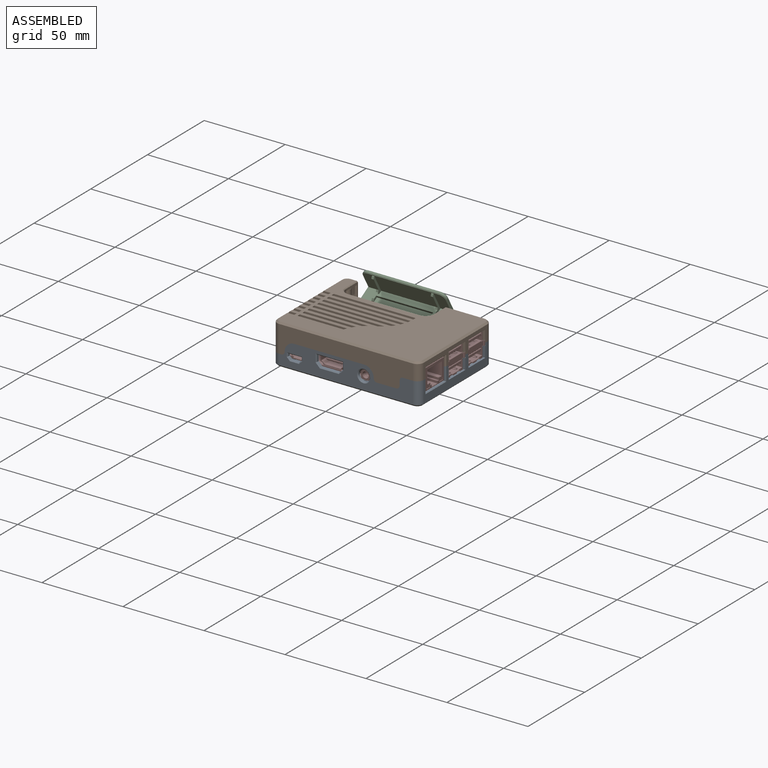
[diagram: assembled view]
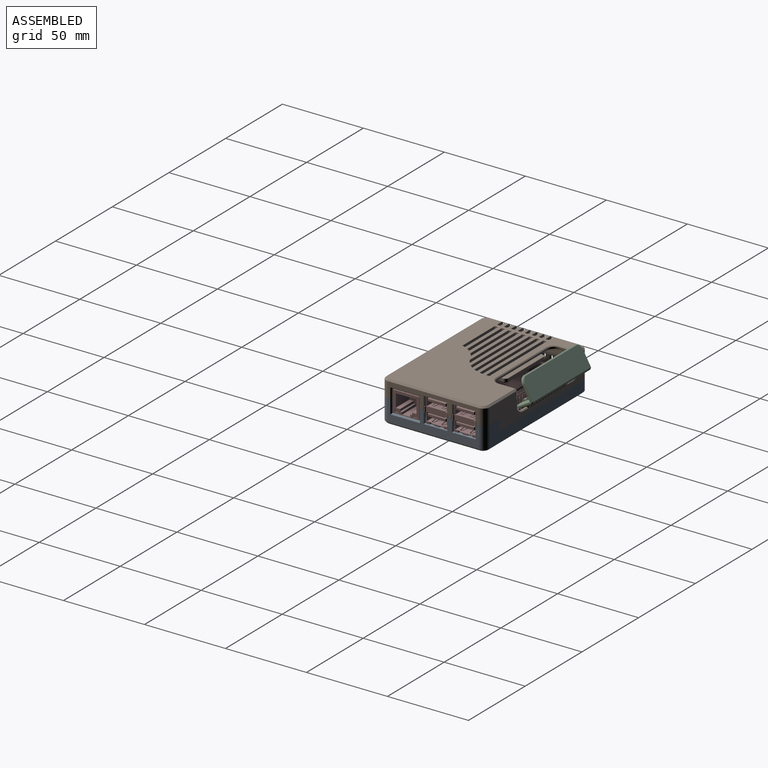
[diagram: assembled view, second angle]
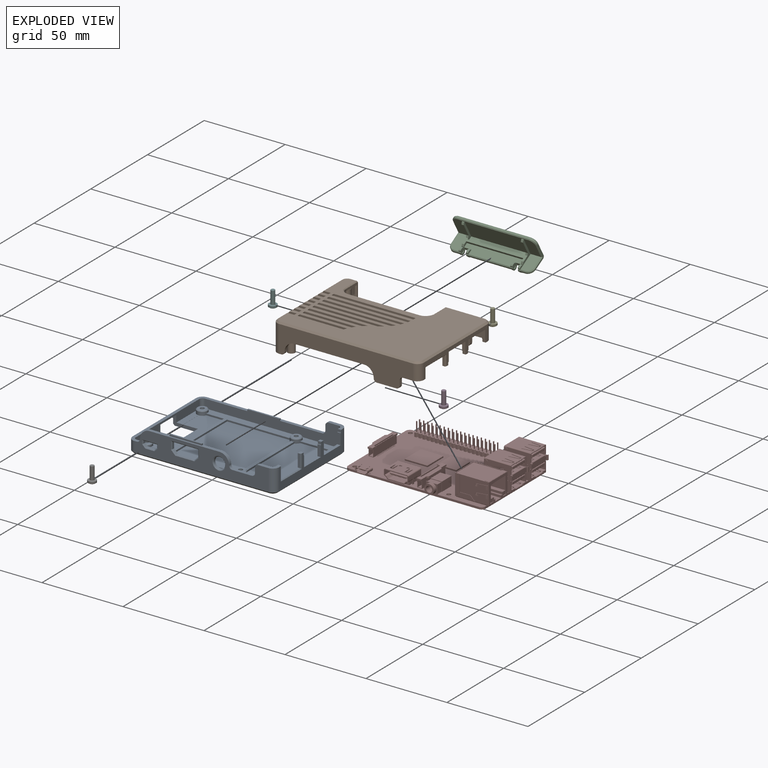
[diagram: exploded view]
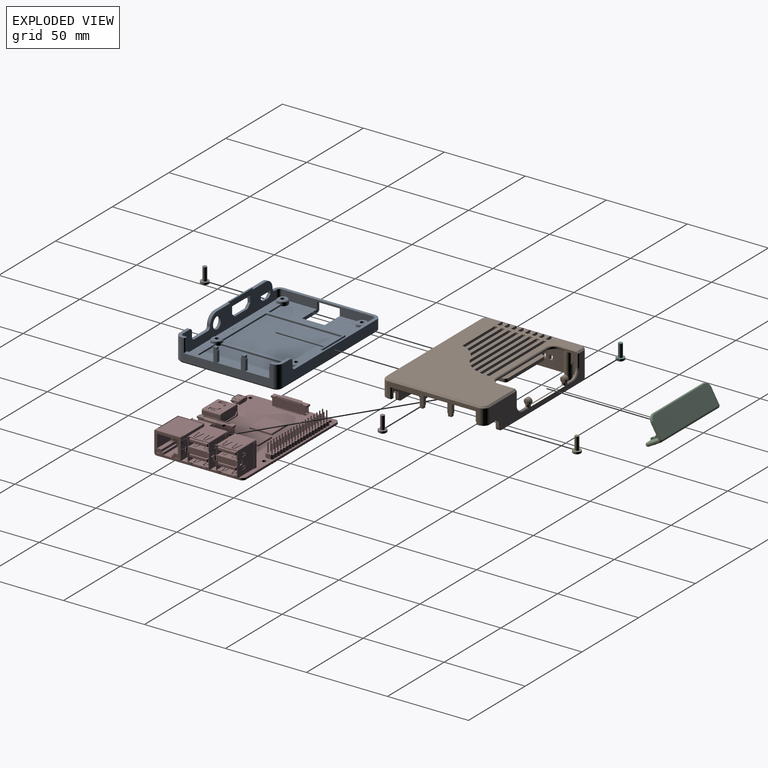
[diagram: exploded view, second angle]
FCSTD DOCUMENT  (FreeCAD 2021.519R24301 +3652 (Git))
Label: RasberryPi2_Assembly
License: All rights reserved
LicenseURL: http://en.wikipedia.org/wiki/All_rights_reserved
objects: App::FeaturePython×28, Part::FeaturePython×19, App::Link×8
note: 18 computed .brp shape members not serialized (recipe doc carries the construction recipe); baked Part::Feature solids carry a one-line shape summary decoded from their .brp
EXTERNAL_REF file=RasberryPi2.FCStd obj=Body016
EXTERNAL_REF file=RasberryPi2.FCStd obj=Body017
EXTERNAL_REF file=RasberryPi2.FCStd obj=Body018
EXTERNAL_REF file=RasberryPi2.FCStd obj=Screw
EXTERNAL_REF file=RasberryPi2.FCStd obj=Screw001
EXTERNAL_REF file=RasberryPi2.FCStd obj=Screw002
EXTERNAL_REF file=RasberryPi2.FCStd obj=Screw003
EXTERNAL_REF file=RasberryPi2.FCStd obj=Part001

FEATURE [App::Link] Link  label="Link(Bottom)"
  AutoLinkLabel = true
  LinkedObject = -> <external RasberryPi2.FCStd>#Body016
  SyncGroupVisibility = false
  _LinkVersion = 1
FEATURE [App::Link] Link001  label="Link001(Top)"
  AutoLinkLabel = true
  LinkPlacement = pos=(3.6e-15,3.6e-15,4.4e-15) rot=(0,0,1;0rad)
  LinkedObject = -> <external RasberryPi2.FCStd>#Body017
  Placement = pos=(3.6e-15,3.6e-15,4.4e-15) rot=(0,0,1;0rad)
  SyncGroupVisibility = false
  _LinkVersion = 1
FEATURE [App::Link] Link002  label="Link002(SideDoor)"
  AutoLinkLabel = true
  LinkPlacement = pos=(-2.4768e-12,3.6077,33.7128) rot=(-1,0,0;1.0472rad)
  LinkedObject = -> <external RasberryPi2.FCStd>#Body018
  Placement = pos=(-2.4768e-12,3.6077,33.7128) rot=(-1,0,0;1.0472rad)
  SyncGroupVisibility = false
  _LinkVersion = 1
FEATURE [App::Link] Link003  label="Link003(M2.5x8-Screw)"
  AutoLinkLabel = true
  LinkPlacement = pos=(19,-24.5,1.9) rot=(1,0,0;3.14159rad)
  LinkedObject = -> <external RasberryPi2.FCStd>#Screw
  Placement = pos=(19,-24.5,1.9) rot=(1,0,0;3.14159rad)
  SyncGroupVisibility = false
  _LinkVersion = 1
FEATURE [App::Link] Link004  label="Link004(M2.5x8-Screw031)"
  AutoLinkLabel = true
  LinkPlacement = pos=(19,24.5,1.9) rot=(1,0,0;3.14159rad)
  LinkedObject = -> <external RasberryPi2.FCStd>#Screw001
  Placement = pos=(19,24.5,1.9) rot=(1,0,0;3.14159rad)
  SyncGroupVisibility = false
  _LinkVersion = 1
FEATURE [App::Link] Link005  label="Link005(M2.5x8-Screw032)"
  AutoLinkLabel = true
  LinkPlacement = pos=(-39,24.5,1.9) rot=(1,0,0;3.14159rad)
  LinkedObject = -> <external RasberryPi2.FCStd>#Screw002
  Placement = pos=(-39,24.5,1.9) rot=(1,0,0;3.14159rad)
  SyncGroupVisibility = false
  _LinkVersion = 1
FEATURE [App::Link] Link006  label="Link006(M2.5x8-Screw033)"
  AutoLinkLabel = true
  LinkPlacement = pos=(-39,-24.5,1.9) rot=(1,0,0;3.14159rad)
  LinkedObject = -> <external RasberryPi2.FCStd>#Screw003
  Placement = pos=(-39,-24.5,1.9) rot=(1,0,0;3.14159rad)
  SyncGroupVisibility = false
  _LinkVersion = 1
FEATURE [App::Link] Link007  label="Link007(RasberryPi2)"
  AutoLinkLabel = true
  LinkPlacement = pos=(0,7.1e-15,6) rot=(0,0,1;0rad)
  LinkedObject = -> <external RasberryPi2.FCStd>#Part001
  Placement = pos=(0,7.1e-15,6) rot=(0,0,1;0rad)
  SyncGroupVisibility = false
  _LinkVersion = 1
FEATURE [Part::FeaturePython] Parts  # WARN: FeaturePython — macro-defined, semantics opaque (R4)
  Group = -> [Link,Link001,Link002,Link003,Link004,Link005,Link006,Link007]
  GroupMode = 0
  _LinkVersion = 1
FEATURE [Part::FeaturePython] Assembly  label="Pi2_Assembly"  # WARN: FeaturePython — macro-defined, semantics opaque (R4)
  AutoRelax = true
  BuildShape = 0
  Freeze = false
  Group = -> [Constraints,Elements,Parts]
  Verbose = false
  _LinkVersion = 1
  _SolverType = 1
  _Version = 1
FEATURE [App::FeaturePython] Constraints  # WARN: FeaturePython — macro-defined, semantics opaque (R4)
  Group = -> [Constraint,Constraint001,Constraint002,Constraint003,Constraint004,Constraint005,Constraint006,Constraint007,Constraint008]
  _LinkVersion = 1
  _Version = 1
FEATURE [App::FeaturePython] Elements  # WARN: FeaturePython — macro-defined, semantics opaque (R4)
  Group = -> [_Element,_Element001,_Element002,_Element003,_Element004,_Element005,_Element006,_Element007,_Element008,_Element009,_Element010,_Element011,_Element012,_Element013,_Element014,_Element015,_Element016]
  _LinkVersion = 1
FEATURE [App::FeaturePython] Constraint  label="Locked"  # WARN: FeaturePython — macro-defined, semantics opaque (R4)
  Disabled = false
  Group = -> [ElementLink]
  _ConstraintType = 0
  _LinkVersion = 1
  _Parent = -> Constraints
FEATURE [App::FeaturePython] ElementLink  label="_Element"  # link proxy (typed FeaturePython)
  LinkTransform = true
  LinkedObject = -> _Element
  _LinkVersion = 1
  _Parent = -> Constraint
FEATURE [Part::FeaturePython] _Element  # link proxy (typed FeaturePython)
  Detach = false
  LinkTransform = true
  LinkedObject = -> Link [Pad060.Face99]
  _LinkVersion = 1
  _Parent = -> Elements
FEATURE [App::FeaturePython] Constraint001  label="Attachment"  # WARN: FeaturePython — macro-defined, semantics opaque (R4)
  Cascade = false
  Disabled = false
  Group = -> [ElementLink001,ElementLink002]
  Multiply = false
  _ConstraintType = 45
  _LinkVersion = 1
  _Parent = -> Constraints
FEATURE [App::FeaturePython] ElementLink001  label="_Element001"  # link proxy (typed FeaturePython)
  LinkTransform = true
  LinkedObject = -> _Element001
  _LinkVersion = 1
  _Parent = -> Constraint001
FEATURE [Part::FeaturePython] _Element001  # link proxy (typed FeaturePython)
  Detach = false
  LinkTransform = true
  LinkedObject = -> Link [Pad060.Edge408]
  _LinkVersion = 1
  _Parent = -> Elements
FEATURE [App::FeaturePython] ElementLink002  label="_Element002"  # link proxy (typed FeaturePython)
  LinkTransform = true
  LinkedObject = -> _Element002
  _LinkVersion = 1
  _Parent = -> Constraint001
FEATURE [Part::FeaturePython] _Element002  # link proxy (typed FeaturePython)
  Detach = false
  LinkTransform = true
  LinkedObject = -> Link003 [Edge5]
  _LinkVersion = 1
  _Parent = -> Elements
FEATURE [App::FeaturePython] Constraint002  label="Attachment001"  # WARN: FeaturePython — macro-defined, semantics opaque (R4)
  Cascade = false
  Disabled = false
  Group = -> [ElementLink003,ElementLink004]
  Multiply = false
  _ConstraintType = 45
  _LinkVersion = 1
  _Parent = -> Constraints
FEATURE [App::FeaturePython] ElementLink003  label="_Element003"  # link proxy (typed FeaturePython)
  LinkTransform = true
  LinkedObject = -> _Element003
  _LinkVersion = 1
  _Parent = -> Constraint002
FEATURE [Part::FeaturePython] _Element003  # link proxy (typed FeaturePython)
  Detach = false
  LinkTransform = true
  LinkedObject = -> Link [Pad060.Edge180]
  _LinkVersion = 1
  _Parent = -> Elements
FEATURE [App::FeaturePython] ElementLink004  label="_Element004"  # link proxy (typed FeaturePython)
  LinkTransform = true
  LinkedObject = -> _Element004
  _LinkVersion = 1
  _Parent = -> Constraint002
FEATURE [Part::FeaturePython] _Element004  # link proxy (typed FeaturePython)
  Detach = false
  LinkTransform = true
  LinkedObject = -> Link004 [Edge5]
  _LinkVersion = 1
  _Parent = -> Elements
FEATURE [App::FeaturePython] Constraint003  label="Attachment002"  # WARN: FeaturePython — macro-defined, semantics opaque (R4)
  Cascade = false
  Disabled = false
  Group = -> [ElementLink005,ElementLink006]
  Multiply = false
  _ConstraintType = 45
  _LinkVersion = 1
  _Parent = -> Constraints
FEATURE [App::FeaturePython] ElementLink005  label="_Element005"  # link proxy (typed FeaturePython)
  LinkTransform = true
  LinkedObject = -> _Element005
  _LinkVersion = 1
  _Parent = -> Constraint003
FEATURE [Part::FeaturePython] _Element005  # link proxy (typed FeaturePython)
  Detach = false
  LinkTransform = true
  LinkedObject = -> Link [Pad060.Edge410]
  _LinkVersion = 1
  _Parent = -> Elements
FEATURE [App::FeaturePython] ElementLink006  label="_Element006"  # link proxy (typed FeaturePython)
  LinkTransform = true
  LinkedObject = -> _Element006
  _LinkVersion = 1
  _Parent = -> Constraint003
FEATURE [Part::FeaturePython] _Element006  # link proxy (typed FeaturePython)
  Detach = false
  LinkTransform = true
  LinkedObject = -> Link005 [Edge5]
  _LinkVersion = 1
  _Parent = -> Elements
FEATURE [App::FeaturePython] Constraint004  label="Attachment003"  # WARN: FeaturePython — macro-defined, semantics opaque (R4)
  Cascade = false
  Disabled = false
  Group = -> [ElementLink007,ElementLink008]
  Multiply = false
  _ConstraintType = 45
  _LinkVersion = 1
  _Parent = -> Constraints
FEATURE [App::FeaturePython] ElementLink007  label="_Element007"  # link proxy (typed FeaturePython)
  LinkTransform = true
  LinkedObject = -> _Element007
  _LinkVersion = 1
  _Parent = -> Constraint004
FEATURE [Part::FeaturePython] _Element007  # link proxy (typed FeaturePython)
  Detach = false
  LinkTransform = true
  LinkedObject = -> Link [Pad060.Edge412]
  _LinkVersion = 1
  _Parent = -> Elements
FEATURE [App::FeaturePython] ElementLink008  label="_Element008"  # link proxy (typed FeaturePython)
  LinkTransform = true
  LinkedObject = -> _Element008
  _LinkVersion = 1
  _Parent = -> Constraint004
FEATURE [Part::FeaturePython] _Element008  # link proxy (typed FeaturePython)
  Detach = false
  LinkTransform = true
  LinkedObject = -> Link006 [Edge5]
  _LinkVersion = 1
  _Parent = -> Elements
FEATURE [App::FeaturePython] Constraint005  label="Attachment004"  # WARN: FeaturePython — macro-defined, semantics opaque (R4)
  Cascade = false
  Disabled = false
  Group = -> [ElementLink009,ElementLink010]
  Multiply = false
  _ConstraintType = 45
  _LinkVersion = 0
  _Parent = -> Constraints
FEATURE [App::FeaturePython] ElementLink009  label="_Element009"  # link proxy (typed FeaturePython)
  LinkTransform = true
  LinkedObject = -> _Element009
  _LinkVersion = 0
  _Parent = -> Constraint005
FEATURE [Part::FeaturePython] _Element009  # link proxy (typed FeaturePython)
  Detach = false
  LinkTransform = true
  LinkedObject = -> Link [Pad060.Edge367]
  _LinkVersion = 0
  _Parent = -> Elements
FEATURE [App::FeaturePython] ElementLink010  label="_Element010"  # link proxy (typed FeaturePython)
  LinkTransform = true
  LinkedObject = -> _Element010
  Offset = pos=(0,0,0) rot=(1,0,0;3.14159rad)
  Placement = pos=(0,-49,9.4) rot=(1,0,0;3.14159rad)
  _LinkVersion = 0
  _Parent = -> Constraint005
FEATURE [Part::FeaturePython] _Element010  # link proxy (typed FeaturePython)
  Detach = false
  LinkTransform = true
  LinkedObject = -> Link007 [Body.Pocket012.Edge26]
  _LinkVersion = 0
  _Parent = -> Elements
FEATURE [App::FeaturePython] Constraint006  label="Attachment005"  # WARN: FeaturePython — macro-defined, semantics opaque (R4)
  Cascade = false
  Disabled = false
  Group = -> [ElementLink011,ElementLink012]
  Multiply = false
  _ConstraintType = 45
  _LinkVersion = 0
  _Parent = -> Constraints
FEATURE [App::FeaturePython] ElementLink011  label="_Element011"  # link proxy (typed FeaturePython)
  LinkTransform = true
  LinkedObject = -> _Element011
  _LinkVersion = 0
  _Parent = -> Constraint006
FEATURE [Part::FeaturePython] _Element011  # link proxy (typed FeaturePython)
  Detach = false
  LinkTransform = true
  LinkedObject = -> Link007 [Body.Pocket012.Edge42]
  _LinkVersion = 0
  _Parent = -> Elements
FEATURE [App::FeaturePython] ElementLink012  label="_Element012"  # link proxy (typed FeaturePython)
  LinkTransform = true
  LinkedObject = -> _Element012
  Offset = pos=(0,0,0.2) rot=(0,0,1;0rad)
  Placement = pos=(0,0,-0.2) rot=(0,0,1;0rad)
  _LinkVersion = 0
  _Parent = -> Constraint006
FEATURE [Part::FeaturePython] _Element012  # link proxy (typed FeaturePython)
  Detach = false
  LinkTransform = true
  LinkedObject = -> Link001 [Fillet039.Edge536]
  _LinkVersion = 0
  _Parent = -> Elements
FEATURE [App::FeaturePython] Constraint007  label="PlaneCoincident"  # WARN: FeaturePython — macro-defined, semantics opaque (R4)
  Angle = 0
  AnglePitch = 0
  AngleRoll = 0
  Cascade = false
  Disabled = false
  Group = -> [ElementLink013,ElementLink014]
  LockAngle = false
  Multiply = false
  OffsetX = 0
  OffsetY = 0
  _ConstraintType = 35
  _LinkVersion = 0
  _Parent = -> Constraints
FEATURE [App::FeaturePython] ElementLink013  label="_Element013"  # link proxy (typed FeaturePython)
  LinkTransform = true
  LinkedObject = -> _Element013
  _LinkVersion = 0
  _Parent = -> Constraint007
FEATURE [Part::FeaturePython] _Element013  # link proxy (typed FeaturePython)
  Detach = false
  LinkTransform = true
  LinkedObject = -> Link001 [Fillet039.Face260]
  _LinkVersion = 0
  _Parent = -> Elements
FEATURE [App::FeaturePython] ElementLink014  label="_Element014"  # link proxy (typed FeaturePython)
  LinkTransform = true
  LinkedObject = -> _Element014
  Offset = pos=(0,0,0.25) rot=(0,0,1;0rad)
  Placement = pos=(0.25,3.6e-15,0) rot=(0,0,1;0rad)
  _LinkVersion = 0
  _Parent = -> Constraint007
FEATURE [Part::FeaturePython] _Element014  # link proxy (typed FeaturePython)
  Detach = false
  LinkTransform = true
  LinkedObject = -> Link002 [Chamfer018.Face96]
  _LinkVersion = 0
  _Parent = -> Elements
FEATURE [App::FeaturePython] Constraint008  label="Angle"  # WARN: FeaturePython — macro-defined, semantics opaque (R4)
  Angle = 120
  Disabled = false
  Group = -> [ElementLink015,ElementLink016]
  Supplement = false
  _ConstraintType = 27
  _LinkVersion = 0
  _Parent = -> Constraints
FEATURE [App::FeaturePython] ElementLink015  label="_Element015"  # link proxy (typed FeaturePython)
  LinkTransform = true
  LinkedObject = -> _Element015
  _LinkVersion = 0
  _Parent = -> Constraint008
FEATURE [Part::FeaturePython] _Element015  # link proxy (typed FeaturePython)
  Detach = false
  LinkTransform = true
  LinkedObject = -> Link001 [Fillet039.Edge164]
  _LinkVersion = 0
  _Parent = -> Elements
FEATURE [App::FeaturePython] ElementLink016  label="_Element016"  # link proxy (typed FeaturePython)
  LinkTransform = true
  LinkedObject = -> _Element016
  _LinkVersion = 0
  _Parent = -> Constraint008
FEATURE [Part::FeaturePython] _Element016  # link proxy (typed FeaturePython)
  Detach = false
  LinkTransform = true
  LinkedObject = -> Link002 [Chamfer018.Edge222]
  _LinkVersion = 0
  _Parent = -> Elements

RESOLVED EXTERNAL PARTS (link-assembly join: the EXTERNAL_REF files above that resolve inside this repo's crawl, each included once):
---- part RasberryPi2.FCStd = doc fcstd_463ae1476cad (287970 chars; too large to inline — full recipe in that document) ----
